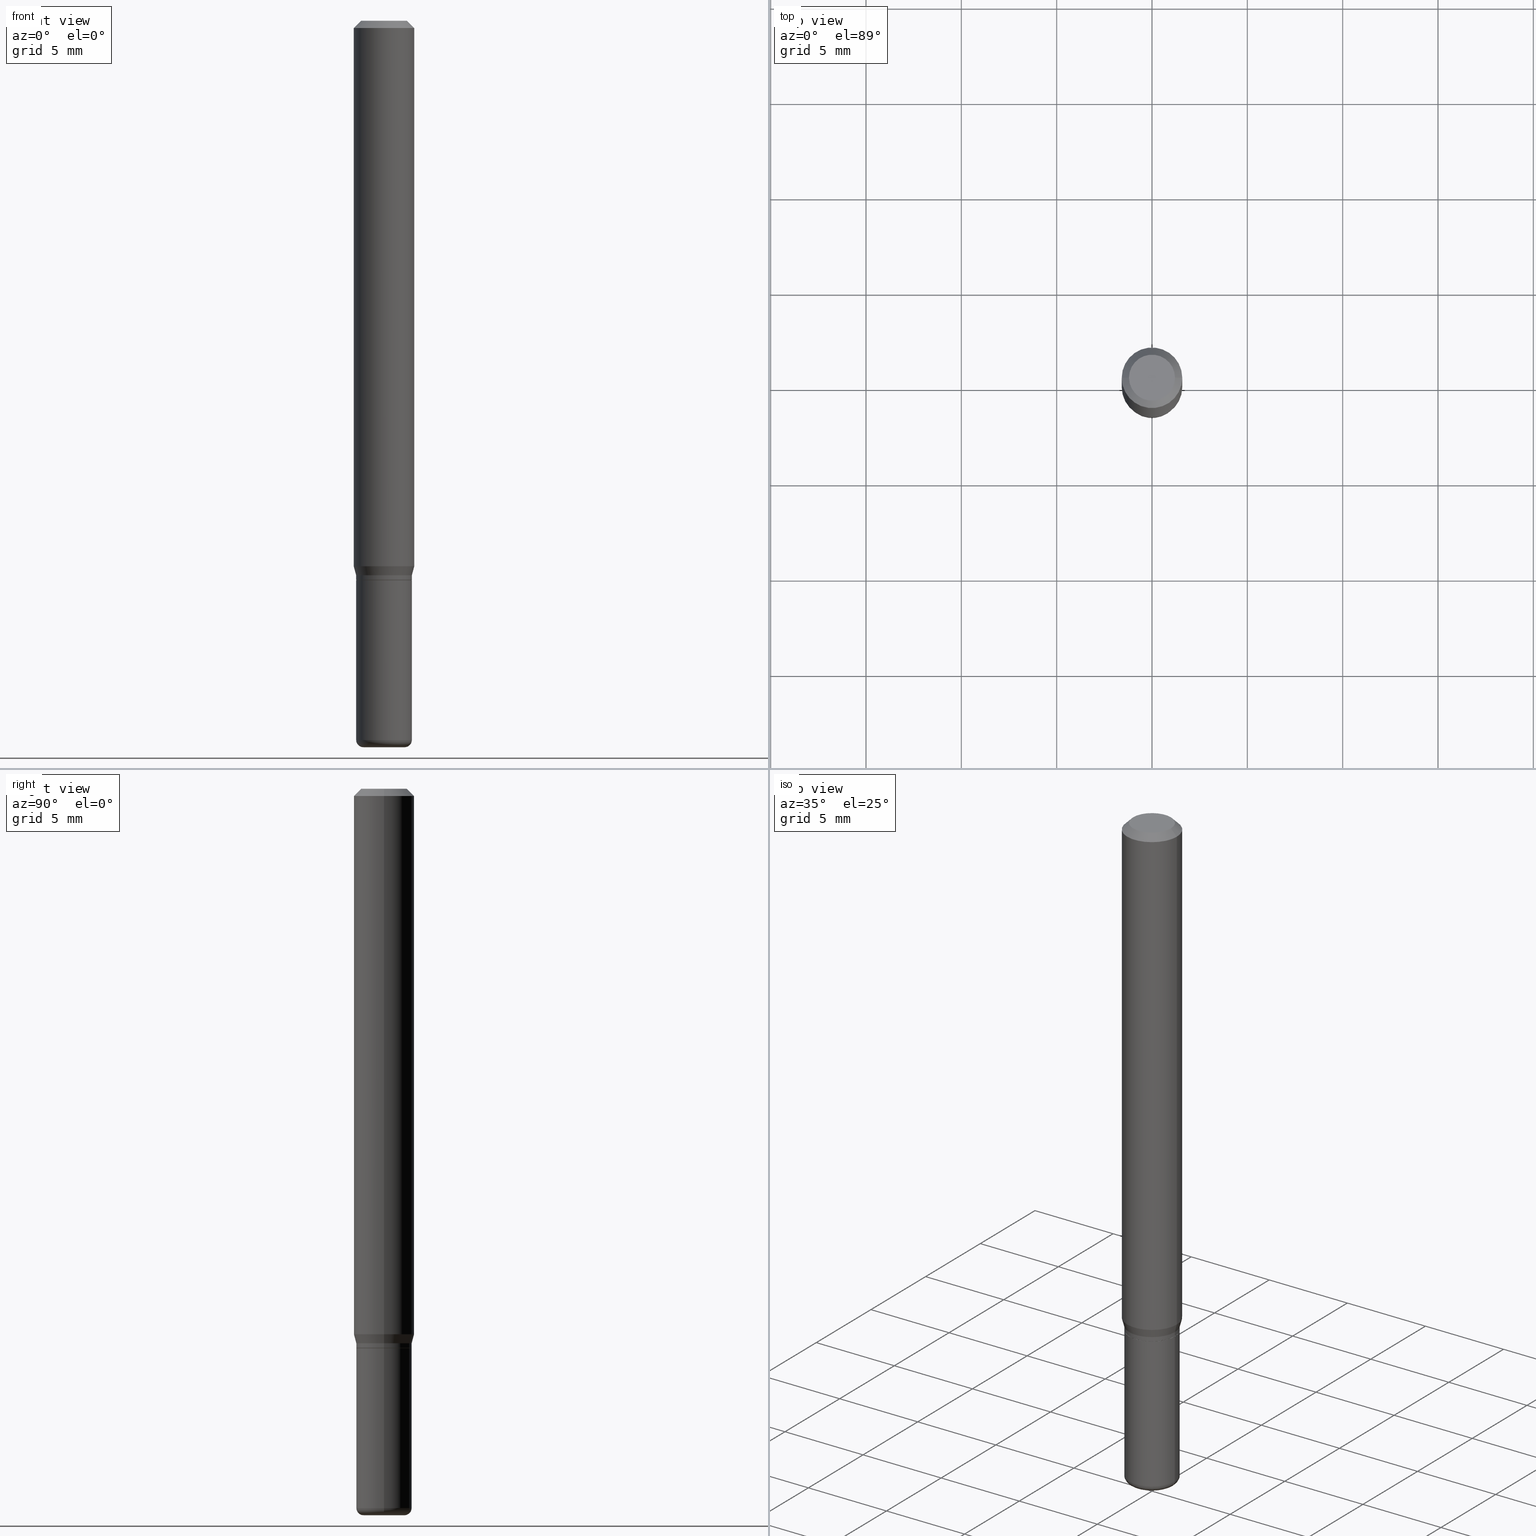
[diagram: canonical four-view strip — front | top / right | iso, engineering-drawing reading convention]
A machine part, canonical four-view strip (front | top / right | iso — engineering-drawing reading convention). The complete STEP part file that produces these views, byte-faithful:
ISO-10303-21;
HEADER;
FILE_DESCRIPTION (( 'STEP AP203' ),
    '1' );
FILE_NAME ('09111.STEP',
    '2024-02-29T22:14:59',
    ( '' ),
    ( '' ),
    'SwSTEP 2.0',
    'SolidWorks 2023',
    '' );
FILE_SCHEMA (( 'CONFIG_CONTROL_DESIGN' ));
ENDSEC;

DATA;
#1 = ORIENTED_EDGE ( 'NONE', *, *, #307, .T. ) ;
#2 = PERSON_AND_ORGANIZATION ( #153, #236 ) ;
#3 = APPROVAL ( #138, 'UNSPECIFIED' ) ;
#4 = CIRCLE ( 'NONE', #470, 0.05749999999999999556 ) ;
#5 = APPROVAL_PERSON_ORGANIZATION ( #441, #3, #374 ) ;
#6 = CARTESIAN_POINT ( 'NONE',  ( 0.05749999999999999556, -4.015203539669603161E-16, 2.803801646082662590E-30 ) ) ;
#7 = VERTEX_POINT ( 'NONE', #202 ) ;
#8 = DIRECTION ( 'NONE',  ( 1.000000000000000000, -6.982962677686266711E-15, 4.876176775795935232E-29 ) ) ;
#9 = ORIENTED_EDGE ( 'NONE', *, *, #194, .T. ) ;
#10 = DIRECTION ( 'NONE',  ( -2.445468806185136877E-29, 3.491481338843145188E-15, 1.000000000000000000 ) ) ;
#11 = EDGE_LOOP ( 'NONE', ( #491, #33, #214, #14 ) ) ;
#12 = AXIS2_PLACEMENT_3D ( 'NONE', #149, #195, #426 ) ;
#13 = EDGE_CURVE ( 'NONE', #47, #305, #271, .T. ) ;
#14 = ORIENTED_EDGE ( 'NONE', *, *, #376, .F. ) ;
#15 = PRODUCT ( '09111', '09111', '', ( #50 ) ) ;
#16 = ORIENTED_EDGE ( 'NONE', *, *, #379, .T. ) ;
#17 = DIRECTION ( 'NONE',  ( 1.000000000000000000, -6.982962677686274599E-15, 0.000000000000000000 ) ) ;
#18 = LINE ( 'NONE', #207, #64 ) ;
#19 = AXIS2_PLACEMENT_3D ( 'NONE', #475, #32, #508 ) ;
#20 = AXIS2_PLACEMENT_3D ( 'NONE', #57, #385, #288 ) ;
#21 = EDGE_CURVE ( 'NONE', #390, #132, #272, .T. ) ;
#22 = DIRECTION ( 'NONE',  ( 1.000000000000000000, -6.982962677686266711E-15, 0.000000000000000000 ) ) ;
#23 = CARTESIAN_POINT ( 'NONE',  ( 3.631521177184928138E-29, -5.184849788182071492E-15, -1.485000000000000098 ) ) ;
#24 = DIRECTION ( 'NONE',  ( -2.445468806185136597E-29, 3.491481338843145583E-15, 1.000000000000000000 ) ) ;
#25 = DIRECTION ( 'NONE',  ( 2.438088387897960049E-29, -3.491481338843145188E-15, -1.000000000000000000 ) ) ;
#26 = CARTESIAN_POINT ( 'NONE',  ( 2.800061783081981762E-29, -3.997746132975402522E-15, -1.145000000000000240 ) ) ;
#27 = APPROVAL ( #244, 'UNSPECIFIED' ) ;
#28 = VERTEX_POINT ( 'NONE', #172 ) ;
#29 = ADVANCED_FACE ( 'NONE', ( #330 ), #253, .T. ) ;
#30 = CARTESIAN_POINT ( 'NONE',  ( 0.05749999999999999556, -4.432435559661372688E-15, -1.154500000000000304 ) ) ;
#31 = CIRCLE ( 'NONE', #258, 0.05699999999999998818 ) ;
#32 = DIRECTION ( 'NONE',  ( -2.438088387897960049E-29, 3.491481338843145188E-15, 1.000000000000000000 ) ) ;
#33 = ORIENTED_EDGE ( 'NONE', *, *, #40, .T. ) ;
#34 = DIRECTION ( 'NONE',  ( -2.445468806185136597E-29, 3.491481338843145583E-15, 1.000000000000000000 ) ) ;
#35 = DIRECTION ( 'NONE',  ( -2.445468806185136877E-29, 3.491481338843145188E-15, 1.000000000000000000 ) ) ;
#36 = ORIENTED_EDGE ( 'NONE', *, *, #506, .F. ) ;
#37 = CARTESIAN_POINT ( 'NONE',  ( 3.668203209277632395E-31, -5.237222008264614861E-17, -0.01499999999999970281 ) ) ;
#38 = DATE_AND_TIME ( #284, #76 ) ;
#39 = LINE ( 'NONE', #436, #243 ) ;
#40 = EDGE_CURVE ( 'NONE', #106, #132, #435, .T. ) ;
#41 = LINE ( 'NONE', #518, #54 ) ;
#42 = FACE_OUTER_BOUND ( 'NONE', #345, .T. ) ;
#43 = APPLICATION_PROTOCOL_DEFINITION ( 'international standard', 'config_control_design', 1994, #356 ) ;
#44 = CARTESIAN_POINT ( 'NONE',  ( 2.823293736740741066E-29, -4.030915205694411879E-15, -1.154500000000000304 ) ) ;
#45 = AXIS2_PLACEMENT_3D ( 'NONE', #239, #34, #164 ) ;
#46 = AXIS2_PLACEMENT_3D ( 'NONE', #295, #188, #344 ) ;
#47 = VERTEX_POINT ( 'NONE', #401 ) ;
#48 = CYLINDRICAL_SURFACE ( 'NONE', #169, 0.05749999999999998168 ) ;
#49 = ORIENTED_EDGE ( 'NONE', *, *, #269, .F. ) ;
#50 = MECHANICAL_CONTEXT ( 'NONE', #317, 'mechanical' ) ;
#51 = ADVANCED_FACE ( 'NONE', ( #42 ), #48, .T. ) ;
#52 = CARTESIAN_POINT ( 'NONE',  ( 0.000000000000000000, 0.000000000000000000, 0.000000000000000000 ) ) ;
#53 = VERTEX_POINT ( 'NONE', #120 ) ;
#54 = VECTOR ( 'NONE', #336, 39.37007874015748143 ) ;
#55 = SECURITY_CLASSIFICATION ( '', '', #331 ) ;
#56 = DIRECTION ( 'NONE',  ( 1.000000000000000000, -6.982962677686266711E-15, 0.000000000000000000 ) ) ;
#57 = CARTESIAN_POINT ( 'NONE',  ( 2.754428713916943180E-29, -3.932594204224195830E-15, -1.126339745962155803 ) ) ;
#58 = ORIENTED_EDGE ( 'NONE', *, *, #154, .F. ) ;
#59 = LINE ( 'NONE', #266, #116 ) ;
#60 = EDGE_CURVE ( 'NONE', #292, #391, #347, .T. ) ;
#61 = CYLINDRICAL_SURFACE ( 'NONE', #222, 0.05749999999999999556 ) ;
#62 = ORIENTED_EDGE ( 'NONE', *, *, #506, .T. ) ;
#63 = ORIENTED_EDGE ( 'NONE', *, *, #269, .T. ) ;
#64 = VECTOR ( 'NONE', #197, 39.37007874015748854 ) ;
#65 = CARTESIAN_POINT ( 'NONE',  ( 0.05749999999999996780, -4.399266486942362543E-15, -1.145000000000000240 ) ) ;
#66 = EDGE_CURVE ( 'NONE', #390, #7, #220, .T. ) ;
#67 = CARTESIAN_POINT ( 'NONE',  ( 0.05699999999999998818, -4.430689818991950396E-15, -1.155000000000000027 ) ) ;
#68 = LINE ( 'NONE', #308, #415 ) ;
#69 = AXIS2_PLACEMENT_3D ( 'NONE', #299, #458, #102 ) ;
#70 = FACE_OUTER_BOUND ( 'NONE', #382, .T. ) ;
#71 = MANIFOLD_SOLID_BREP ( 'Body-Move/Copy2[1]', #108 ) ;
#72 = DIRECTION ( 'NONE',  ( 1.000000000000000000, -6.982962677686276177E-15, 0.000000000000000000 ) ) ;
#73 = CARTESIAN_POINT ( 'NONE',  ( 0.05699999999999998818, -4.430689818991950396E-15, -1.155000000000000027 ) ) ;
#74 = PERSON_AND_ORGANIZATION ( #153, #236 ) ;
#75 = AXIS2_PLACEMENT_3D ( 'NONE', #321, #237, #398 ) ;
#76 = LOCAL_TIME ( 17, 14, 59.00000000000000000, #448 ) ;
#77 = EDGE_LOOP ( 'NONE', ( #145, #97, #148, #303 ) ) ;
#78 = DIRECTION ( 'NONE',  ( -2.445468806185136597E-29, 3.491481338843145583E-15, 1.000000000000000000 ) ) ;
#79 =( LENGTH_UNIT ( ) NAMED_UNIT ( * ) SI_UNIT ( $, .METRE. ) );
#80 = APPROVAL_ROLE ( '' ) ;
#81 = CC_DESIGN_PERSON_AND_ORGANIZATION_ASSIGNMENT ( #252, #173, ( #312 ) ) ;
#82 = ORIENTED_EDGE ( 'NONE', *, *, #240, .T. ) ;
#83 = DIRECTION ( 'NONE',  ( 7.105427357601001859E-15, 1.000000000000000000, -3.491481338843145583E-15 ) ) ;
#84 = CALENDAR_DATE ( 2024, 29, 2 ) ;
#85 = EDGE_LOOP ( 'NONE', ( #514, #368, #16, #509 ) ) ;
#86 = APPLICATION_PROTOCOL_DEFINITION ( 'international standard', 'config_control_design', 1994, #317 ) ;
#87 = AXIS2_PLACEMENT_3D ( 'NONE', #315, #351, #306 ) ;
#88 = LOCAL_TIME ( 17, 14, 59.00000000000000000, #255 ) ;
#89 = ORIENTED_EDGE ( 'NONE', *, *, #348, .F. ) ;
#90 = ADVANCED_FACE ( 'NONE', ( #297 ), #143, .T. ) ;
#91 = PERSON_AND_ORGANIZATION_ROLE ( 'design_owner' ) ;
#92 = DIRECTION ( 'NONE',  ( 1.000000000000000000, -6.982962677686266711E-15, 4.876176775795935793E-29 ) ) ;
#93 = ORIENTED_EDGE ( 'NONE', *, *, #100, .T. ) ;
#94 = DIRECTION ( 'NONE',  ( -2.445468806185136597E-29, 3.491481338843145583E-15, 1.000000000000000000 ) ) ;
#95 = AXIS2_PLACEMENT_3D ( 'NONE', #316, #275, #22 ) ;
#96 = AXIS2_PLACEMENT_3D ( 'NONE', #183, #147, #263 ) ;
#97 = ORIENTED_EDGE ( 'NONE', *, *, #110, .T. ) ;
#98 = FACE_OUTER_BOUND ( 'NONE', #85, .T. ) ;
#99 = DIRECTION ( 'NONE',  ( 0.7071067811866199593, -2.468850131083015945E-15, 0.7071067811864750752 ) ) ;
#100 = EDGE_CURVE ( 'NONE', #413, #104, #59, .T. ) ;
#101 = DIRECTION ( 'NONE',  ( 1.000000000000000000, -6.982962677686266711E-15, 0.000000000000000000 ) ) ;
#102 = DIRECTION ( 'NONE',  ( 1.000000000000000000, -6.982962677686266711E-15, 4.876176775795935793E-29 ) ) ;
#103 = EDGE_LOOP ( 'NONE', ( #383, #460, #89, #301 ) ) ;
#104 = VERTEX_POINT ( 'NONE', #387 ) ;
#105 = CARTESIAN_POINT ( 'NONE',  ( -0.05749999999999998168, -4.200193294210894862E-15, -1.485000000000000098 ) ) ;
#106 = VERTEX_POINT ( 'NONE', #463 ) ;
#107 = FACE_OUTER_BOUND ( 'NONE', #77, .T. ) ;
#108 = CLOSED_SHELL ( 'NONE', ( #294, #427, #187, #467, #354, #251 ) ) ;
#109 = AXIS2_PLACEMENT_3D ( 'NONE', #279, #78, #450 ) ;
#110 = EDGE_CURVE ( 'NONE', #104, #144, #434, .T. ) ;
#111 = VERTEX_POINT ( 'NONE', #393 ) ;
#112 = FACE_OUTER_BOUND ( 'NONE', #456, .T. ) ;
#113 = DIRECTION ( 'NONE',  ( 1.000000000000000000, -6.982962677686262766E-15, 0.000000000000000000 ) ) ;
#114 = FACE_OUTER_BOUND ( 'NONE', #103, .T. ) ;
#115 = DIRECTION ( 'NONE',  ( 1.000000000000000000, -6.982962677686273810E-15, 0.000000000000000000 ) ) ;
#116 = VECTOR ( 'NONE', #232, 39.37007874015748143 ) ;
#117 = CARTESIAN_POINT ( 'NONE',  ( 3.316907271900976589E-16, 0.04750000000000000749, -2.925296391183627249E-17 ) ) ;
#118 = CC_DESIGN_PERSON_AND_ORGANIZATION_ASSIGNMENT ( #125, #380, ( #455 ) ) ;
#119 = DIRECTION ( 'NONE',  ( -2.445468806185136597E-29, 3.491481338843145583E-15, 1.000000000000000000 ) ) ;
#120 = CARTESIAN_POINT ( 'NONE',  ( -0.06250000000000000000, -1.548394002303358444E-15, -0.01499999999999970281 ) ) ;
#121 = CARTESIAN_POINT ( 'NONE',  ( -0.06250000000000000000, -3.488504994374133608E-15, -1.126339745962155803 ) ) ;
#122 = COORDINATED_UNIVERSAL_TIME_OFFSET ( 5, 0, .BEHIND. ) ;
#123 = CARTESIAN_POINT ( 'NONE',  ( -0.04750000000000000749, 3.578768372314221353E-16, 2.731847993664239060E-16 ) ) ;
#124 = ORIENTED_EDGE ( 'NONE', *, *, #66, .T. ) ;
#125 = PERSON_AND_ORGANIZATION ( #153, #236 ) ;
#126 = AXIS2_PLACEMENT_3D ( 'NONE', #371, #83, #478 ) ;
#127 = APPROVAL_PERSON_ORGANIZATION ( #74, #27, #80 ) ;
#128 = ADVANCED_FACE ( 'NONE', ( #107 ), #139, .T. ) ;
#129 = DIRECTION ( 'NONE',  ( 1.000000000000000000, -6.982962677686266711E-15, 0.000000000000000000 ) ) ;
#130 = DATE_AND_TIME ( #84, #88 ) ;
#131 = DIRECTION ( 'NONE',  ( 1.000000000000000000, -6.982962677686266711E-15, 4.876176775795935232E-29 ) ) ;
#132 = VERTEX_POINT ( 'NONE', #105 ) ;
#133 = DATE_TIME_ROLE ( 'creation_date' ) ;
#134 = CARTESIAN_POINT ( 'NONE',  ( -0.05749999999999996780, -3.589184059913344947E-15, -1.145000000000000240 ) ) ;
#135 = EDGE_CURVE ( 'NONE', #391, #343, #68, .T. ) ;
#136 = ORIENTED_EDGE ( 'NONE', *, *, #341, .F. ) ;
#137 = CARTESIAN_POINT ( 'NONE',  ( 0.05749999999999998168, -5.586370142149031512E-15, -1.485000000000000098 ) ) ;
#138 = APPROVAL_STATUS ( 'not_yet_approved' ) ;
#139 = CONICAL_SURFACE ( 'NONE', #12, 0.05749999999999996780, 0.2617993877991499074 ) ;
#140 = VECTOR ( 'NONE', #35, 39.37007874015748143 ) ;
#141 = DIRECTION ( 'NONE',  ( 1.000000000000000000, -6.982962677686266711E-15, 4.852736867747365086E-29 ) ) ;
#142 = ORIENTED_EDGE ( 'NONE', *, *, #366, .T. ) ;
#143 = CYLINDRICAL_SURFACE ( 'NONE', #69, 0.06250000000000000000 ) ;
#144 = VERTEX_POINT ( 'NONE', #65 ) ;
#145 = ORIENTED_EDGE ( 'NONE', *, *, #240, .F. ) ;
#146 = AXIS2_PLACEMENT_3D ( 'NONE', #408, #293, #131 ) ;
#147 = DIRECTION ( 'NONE',  ( -2.445468806185136597E-29, 3.491481338843145583E-15, 1.000000000000000000 ) ) ;
#148 = ORIENTED_EDGE ( 'NONE', *, *, #341, .T. ) ;
#149 = CARTESIAN_POINT ( 'NONE',  ( 2.800061783081981762E-29, -3.997746132975402522E-15, -1.145000000000000240 ) ) ;
#150 = EDGE_LOOP ( 'NONE', ( #242, #414 ) ) ;
#151 = ORIENTED_EDGE ( 'NONE', *, *, #135, .T. ) ;
#152 = EDGE_CURVE ( 'NONE', #413, #309, #453, .T. ) ;
#153 = PERSON ( 'UNSPECIFIED', 'UNSPECIFIED', 'UNSPECIFIED', ('UNSPECIFIED'), ('UNSPECIFIED'), ('UNSPECIFIED') ) ;
#154 = EDGE_CURVE ( 'NONE', #305, #47, #31, .T. ) ;
#155 = VECTOR ( 'NONE', #10, 39.37007874015748143 ) ;
#156 = AXIS2_PLACEMENT_3D ( 'NONE', #37, #326, #361 ) ;
#157 = DIRECTION ( 'NONE',  ( -2.445468806185136597E-29, 3.491481338843145583E-15, 1.000000000000000000 ) ) ;
#158 = CIRCLE ( 'NONE', #445, 0.06250000000000000000 ) ;
#159 = LOCAL_TIME ( 17, 14, 59.00000000000000000, #405 ) ;
#160 = CARTESIAN_POINT ( 'NONE',  ( 2.824516471143833307E-29, -4.032660946363833383E-15, -1.155000000000000027 ) ) ;
#161 = LINE ( 'NONE', #322, #471 ) ;
#162 = DIRECTION ( 'NONE',  ( -2.445468806185136597E-29, 3.491481338843145583E-15, 1.000000000000000000 ) ) ;
#163 = CARTESIAN_POINT ( 'NONE',  ( 4.015203539669885672E-16, 0.05749999999999597100, -1.155000000000000249 ) ) ;
#164 = DIRECTION ( 'NONE',  ( 1.000000000000000000, -6.982962677686258822E-15, 0.000000000000000000 ) ) ;
#165 = DATE_AND_TIME ( #512, #192 ) ;
#166 = FACE_OUTER_BOUND ( 'NONE', #11, .T. ) ;
#167 = ORIENTED_EDGE ( 'NONE', *, *, #461, .F. ) ;
#168 = PERSON_AND_ORGANIZATION_ROLE ( 'design_supplier' ) ;
#169 = AXIS2_PLACEMENT_3D ( 'NONE', #215, #210, #474 ) ;
#170 =( GEOMETRIC_REPRESENTATION_CONTEXT ( 3 ) GLOBAL_UNCERTAINTY_ASSIGNED_CONTEXT ( ( #494 ) ) GLOBAL_UNIT_ASSIGNED_CONTEXT ( ( #482, #245, #216 ) ) REPRESENTATION_CONTEXT ( 'NONE', 'WORKASPACE' ) );
#171 = ORIENTED_EDGE ( 'NONE', *, *, #100, .F. ) ;
#172 = CARTESIAN_POINT ( 'NONE',  ( -0.05750000000000000250, -4.200193294210894862E-15, -1.155000000000000027 ) ) ;
#173 = PERSON_AND_ORGANIZATION_ROLE ( 'creator' ) ;
#174 = DATE_AND_TIME ( #248, #159 ) ;
#175 = PLANE ( 'NONE',  #320 ) ;
#176 = CC_DESIGN_DATE_AND_TIME_ASSIGNMENT ( #130, #133, ( #312 ) ) ;
#177 = ORIENTED_EDGE ( 'NONE', *, *, #462, .F. ) ;
#178 = LENGTH_MEASURE_WITH_UNIT ( LENGTH_MEASURE( 0.02539999999999999897 ), #79 );
#179 = ADVANCED_BREP_SHAPE_REPRESENTATION ( '09111', ( #71, #241, #204 ), #170 ) ;
#180 = ORIENTED_EDGE ( 'NONE', *, *, #379, .F. ) ;
#181 = DATE_TIME_ROLE ( 'classification_date' ) ;
#182 = AXIS2_PLACEMENT_3D ( 'NONE', #392, #157, #17 ) ;
#183 = CARTESIAN_POINT ( 'NONE',  ( 0.000000000000000000, 0.000000000000000000, 0.000000000000000000 ) ) ;
#184 = ADVANCED_FACE ( 'NONE', ( #199 ), #274, .F. ) ;
#185 = DIRECTION ( 'NONE',  ( -0.7071067811866199593, 7.493145998870616062E-15, 0.7071067811864750752 ) ) ;
#186 = PRODUCT_DEFINITION_SHAPE ( 'NONE', 'NONE',  #312 ) ;
#187 = ADVANCED_FACE ( 'NONE', ( #359 ), #472, .F. ) ;
#188 = DIRECTION ( 'NONE',  ( -2.445468806185136597E-29, 3.491481338843145583E-15, 1.000000000000000000 ) ) ;
#189 = FACE_OUTER_BOUND ( 'NONE', #362, .T. ) ;
#190 = ORIENTED_EDGE ( 'NONE', *, *, #60, .F. ) ;
#191 = CONICAL_SURFACE ( 'NONE', #402, 0.06250000000000000000, 0.7853981633974488341 ) ;
#192 = LOCAL_TIME ( 17, 14, 59.00000000000000000, #122 ) ;
#193 = EDGE_CURVE ( 'NONE', #132, #28, #39, .T. ) ;
#194 = EDGE_CURVE ( 'NONE', #144, #104, #498, .T. ) ;
#195 = DIRECTION ( 'NONE',  ( -2.445468806185136597E-29, 3.491481338843145583E-15, 1.000000000000000000 ) ) ;
#196 = CIRCLE ( 'NONE', #394, 0.06250000000000000000 ) ;
#197 = DIRECTION ( 'NONE',  ( 0.2588190451025211836, 1.565188264969622559E-15, 0.9659258262890679791 ) ) ;
#198 = ADVANCED_FACE ( 'NONE', ( #112 ), #191, .T. ) ;
#199 = FACE_OUTER_BOUND ( 'NONE', #422, .T. ) ;
#200 = FACE_OUTER_BOUND ( 'NONE', #333, .T. ) ;
#201 = CARTESIAN_POINT ( 'NONE',  ( 3.668203209277704895E-29, -5.237222008264718177E-15, -1.500000000000000222 ) ) ;
#202 = CARTESIAN_POINT ( 'NONE',  ( 0.05750000000000000250, -4.434181300330794192E-15, -1.155000000000000027 ) ) ;
#203 = AXIS2_PLACEMENT_3D ( 'NONE', #160, #213, #335 ) ;
#204 = AXIS2_PLACEMENT_3D ( 'NONE', #439, #208, #406 ) ;
#205 = ADVANCED_FACE ( 'NONE', ( #200 ), #464, .T. ) ;
#206 = CARTESIAN_POINT ( 'NONE',  ( 2.754428713916943180E-29, -3.932594204224195830E-15, -1.126339745962155803 ) ) ;
#207 = CARTESIAN_POINT ( 'NONE',  ( 0.05749999999999996780, -4.399266486942362543E-15, -1.145000000000000240 ) ) ;
#208 = DIRECTION ( 'NONE',  ( 0.000000000000000000, 0.000000000000000000, 1.000000000000000000 ) ) ;
#209 = DIRECTION ( 'NONE',  ( -2.445468806185136597E-29, 3.491481338843145583E-15, 1.000000000000000000 ) ) ;
#210 = DIRECTION ( 'NONE',  ( -2.445468806185136597E-29, 3.491481338843145583E-15, 1.000000000000000000 ) ) ;
#211 = CALENDAR_DATE ( 2024, 29, 2 ) ;
#212 = AXIS2_PLACEMENT_3D ( 'NONE', #277, #492, #141 ) ;
#213 = DIRECTION ( 'NONE',  ( -2.445468806185136597E-29, 3.491481338843145583E-15, 1.000000000000000000 ) ) ;
#214 = ORIENTED_EDGE ( 'NONE', *, *, #21, .F. ) ;
#215 = CARTESIAN_POINT ( 'NONE',  ( 0.000000000000000000, 0.000000000000000000, 0.000000000000000000 ) ) ;
#216 =( NAMED_UNIT ( * ) SI_UNIT ( $, .STERADIAN. ) SOLID_ANGLE_UNIT ( ) );
#217 = CC_DESIGN_PERSON_AND_ORGANIZATION_ASSIGNMENT ( #372, #91, ( #15 ) ) ;
#218 = ORIENTED_EDGE ( 'NONE', *, *, #278, .F. ) ;
#219 = APPROVAL_ROLE ( '' ) ;
#220 = LINE ( 'NONE', #6, #155 ) ;
#221 = VECTOR ( 'NONE', #99, 39.37007874015748143 ) ;
#222 = AXIS2_PLACEMENT_3D ( 'NONE', #52, #487, #8 ) ;
#223 = EDGE_LOOP ( 'NONE', ( #9, #82, #230, #136 ) ) ;
#224 = FACE_OUTER_BOUND ( 'NONE', #223, .T. ) ;
#225 = ORIENTED_EDGE ( 'NONE', *, *, #517, .T. ) ;
#226 = ORIENTED_EDGE ( 'NONE', *, *, #135, .F. ) ;
#227 = DIRECTION ( 'NONE',  ( -2.445468806185136877E-29, 3.491481338843145188E-15, 1.000000000000000000 ) ) ;
#228 = ORIENTED_EDGE ( 'NONE', *, *, #476, .T. ) ;
#229 = CC_DESIGN_DATE_AND_TIME_ASSIGNMENT ( #286, #181, ( #55 ) ) ;
#230 = ORIENTED_EDGE ( 'NONE', *, *, #517, .F. ) ;
#231 = CIRCLE ( 'NONE', #20, 0.06250000000000000000 ) ;
#232 = DIRECTION ( 'NONE',  ( -2.445468806185136877E-29, 3.491481338843145188E-15, 1.000000000000000000 ) ) ;
#233 = DIRECTION ( 'NONE',  ( 0.7071067811865479058, -7.319954787623257623E-15, -0.7071067811865471286 ) ) ;
#234 = VECTOR ( 'NONE', #373, 39.37007874015748854 ) ;
#235 = CARTESIAN_POINT ( 'NONE',  ( -0.05749999999999999556, -3.622353132632355093E-15, -1.154500000000000304 ) ) ;
#236 = ORGANIZATION ( 'UNSPECIFIED', 'UNSPECIFIED', '' ) ;
#237 = DIRECTION ( 'NONE',  ( -2.445468806185136597E-29, 3.491481338843145583E-15, 1.000000000000000000 ) ) ;
#238 = DIRECTION ( 'NONE',  ( 2.445468806185136597E-29, -3.491481338843145583E-15, -1.000000000000000000 ) ) ;
#239 = CARTESIAN_POINT ( 'NONE',  ( 3.631521177184928138E-29, -5.184849788182071492E-15, -1.485000000000000098 ) ) ;
#240 = EDGE_CURVE ( 'NONE', #104, #365, #516, .T. ) ;
#241 = MANIFOLD_SOLID_BREP ( 'Body-Move/Copy2[2]', #338 ) ;
#242 = ORIENTED_EDGE ( 'NONE', *, *, #417, .F. ) ;
#243 = VECTOR ( 'NONE', #246, 39.37007874015748143 ) ;
#244 = APPROVAL_STATUS ( 'not_yet_approved' ) ;
#245 =( NAMED_UNIT ( * ) PLANE_ANGLE_UNIT ( ) SI_UNIT ( $, .RADIAN. ) );
#246 = DIRECTION ( 'NONE',  ( -2.445468806185136877E-29, 3.491481338843145188E-15, 1.000000000000000000 ) ) ;
#247 = COORDINATED_UNIVERSAL_TIME_OFFSET ( 5, 0, .BEHIND. ) ;
#248 = CALENDAR_DATE ( 2024, 29, 2 ) ;
#249 = CARTESIAN_POINT ( 'NONE',  ( 3.582686580359766038E-29, -5.359686688179453325E-15, -1.500000000000000222 ) ) ;
#250 = ORIENTED_EDGE ( 'NONE', *, *, #110, .F. ) ;
#251 = ADVANCED_FACE ( 'NONE', ( #442 ), #175, .F. ) ;
#252 = PERSON_AND_ORGANIZATION ( #153, #236 ) ;
#253 = CONICAL_SURFACE ( 'NONE', #156, 0.06250000000000000000, 0.7853981633974488341 ) ;
#254 = CONICAL_SURFACE ( 'NONE', #425, 0.05749999999999996780, 0.2617993877991499074 ) ;
#255 = COORDINATED_UNIVERSAL_TIME_OFFSET ( 5, 0, .BEHIND. ) ;
#256 = CARTESIAN_POINT ( 'NONE',  ( 0.05749999999999998168, -4.015203539669602668E-16, 2.803801646082662240E-30 ) ) ;
#257 = LINE ( 'NONE', #304, #329 ) ;
#258 = AXIS2_PLACEMENT_3D ( 'NONE', #396, #457, #101 ) ;
#259 = CARTESIAN_POINT ( 'NONE',  ( 0.000000000000000000, 0.000000000000000000, 0.000000000000000000 ) ) ;
#260 = EDGE_LOOP ( 'NONE', ( #386, #228, #124, #167 ) ) ;
#261 = ORIENTED_EDGE ( 'NONE', *, *, #452, .T. ) ;
#262 = EDGE_LOOP ( 'NONE', ( #440, #352 ) ) ;
#263 = DIRECTION ( 'NONE',  ( 1.000000000000000000, -6.982962677686267499E-15, 4.876176775795935793E-29 ) ) ;
#264 = ORIENTED_EDGE ( 'NONE', *, *, #476, .F. ) ;
#265 = TOROIDAL_SURFACE ( 'NONE', #75, 0.04249999999999999611, 0.01499999999999998557 ) ;
#266 = CARTESIAN_POINT ( 'NONE',  ( -0.05749999999999998168, 4.085620730620574767E-16, -2.828387676896570012E-30 ) ) ;
#267 = AXIS2_PLACEMENT_3D ( 'NONE', #416, #418, #56 ) ;
#268 = DIRECTION ( 'NONE',  ( -0.7071067811865479058, 2.468850131082261005E-15, -0.7071067811865471286 ) ) ;
#269 = EDGE_CURVE ( 'NONE', #309, #413, #4, .T. ) ;
#270 = DIRECTION ( 'NONE',  ( 1.000000000000000000, -6.982962677686274599E-15, 0.000000000000000000 ) ) ;
#271 = CIRCLE ( 'NONE', #429, 0.05699999999999998818 ) ;
#272 = CIRCLE ( 'NONE', #45, 0.05749999999999998168 ) ;
#273 = AXIS2_PLACEMENT_3D ( 'NONE', #511, #94, #384 ) ;
#274 = PLANE ( 'NONE',  #19 ) ;
#275 = DIRECTION ( 'NONE',  ( -2.445468806185136597E-29, 3.491481338843145583E-15, 1.000000000000000000 ) ) ;
#276 = EDGE_CURVE ( 'NONE', #106, #111, #369, .T. ) ;
#277 = CARTESIAN_POINT ( 'NONE',  ( -6.680649051745406845E-45, 9.538196290434862081E-31, 2.731847993664263218E-16 ) ) ;
#278 = EDGE_CURVE ( 'NONE', #305, #309, #497, .T. ) ;
#279 = CARTESIAN_POINT ( 'NONE',  ( -6.680649051745406845E-45, 9.538196290434862081E-31, 2.731847993664263218E-16 ) ) ;
#280 = PERSON_AND_ORGANIZATION ( #153, #236 ) ;
#281 = CARTESIAN_POINT ( 'NONE',  ( -0.06250000000000000000, 4.440892098500626162E-16, -3.074334431409316114E-30 ) ) ;
#282 = EDGE_LOOP ( 'NONE', ( #171, #325, #488, #250 ) ) ;
#283 = CIRCLE ( 'NONE', #381, 0.01499999999999998557 ) ;
#284 = CALENDAR_DATE ( 2024, 29, 2 ) ;
#285 = ORIENTED_EDGE ( 'NONE', *, *, #60, .T. ) ;
#286 = DATE_AND_TIME ( #211, #403 ) ;
#287 = ADVANCED_FACE ( 'NONE', ( #189 ), #314, .F. ) ;
#288 = DIRECTION ( 'NONE',  ( 1.000000000000000000, -6.982962677686262766E-15, 0.000000000000000000 ) ) ;
#289 = DIRECTION ( 'NONE',  ( -2.445468806185136597E-29, 3.491481338843145583E-15, 1.000000000000000000 ) ) ;
#290 = AXIS2_PLACEMENT_3D ( 'NONE', #163, #323, #465 ) ;
#291 = CC_DESIGN_APPROVAL ( #3, ( #312 ) ) ;
#292 = VERTEX_POINT ( 'NONE', #123 ) ;
#293 = DIRECTION ( 'NONE',  ( -2.445468806185136597E-29, 3.491481338843145583E-15, 1.000000000000000000 ) ) ;
#294 = ADVANCED_FACE ( 'NONE', ( #166 ), #504, .T. ) ;
#295 = CARTESIAN_POINT ( 'NONE',  ( 3.631521177184928138E-29, -5.184849788182071492E-15, -1.485000000000000098 ) ) ;
#296 = EDGE_LOOP ( 'NONE', ( #431, #151, #62, #419 ) ) ;
#297 = FACE_OUTER_BOUND ( 'NONE', #377, .T. ) ;
#298 = FACE_OUTER_BOUND ( 'NONE', #282, .T. ) ;
#299 = CARTESIAN_POINT ( 'NONE',  ( 0.000000000000000000, 0.000000000000000000, 0.000000000000000000 ) ) ;
#300 = CARTESIAN_POINT ( 'NONE',  ( 2.800061783081981762E-29, -3.997746132975402522E-15, -1.145000000000000240 ) ) ;
#301 = ORIENTED_EDGE ( 'NONE', *, *, #66, .F. ) ;
#302 = AXIS2_PLACEMENT_3D ( 'NONE', #353, #495, #357 ) ;
#303 = ORIENTED_EDGE ( 'NONE', *, *, #404, .F. ) ;
#304 = CARTESIAN_POINT ( 'NONE',  ( -0.05699999999999998818, -3.627651586980576706E-15, -1.155000000000000027 ) ) ;
#305 = VERTEX_POINT ( 'NONE', #73 ) ;
#306 = DIRECTION ( 'NONE',  ( 1.000000000000000000, -6.982962677686276177E-15, 0.000000000000000000 ) ) ;
#307 = EDGE_CURVE ( 'NONE', #53, #343, #158, .T. ) ;
#308 = CARTESIAN_POINT ( 'NONE',  ( 0.06250000000000000000, -4.811533449433669144E-16, -0.01499999999999970281 ) ) ;
#309 = VERTEX_POINT ( 'NONE', #30 ) ;
#310 = AXIS2_PLACEMENT_3D ( 'NONE', #23, #313, #501 ) ;
#311 = DESIGN_CONTEXT ( 'detailed design', #356, 'design' ) ;
#312 = PRODUCT_DEFINITION ( 'UNKNOWN', '', #455, #311 ) ;
#313 = DIRECTION ( 'NONE',  ( -2.445468806185136597E-29, 3.491481338843145583E-15, 1.000000000000000000 ) ) ;
#314 = PLANE ( 'NONE',  #389 ) ;
#315 = CARTESIAN_POINT ( 'NONE',  ( 3.668203209277704895E-29, -5.237222008264718177E-15, -1.500000000000000222 ) ) ;
#316 = CARTESIAN_POINT ( 'NONE',  ( 2.824516471143833307E-29, -4.032660946363833383E-15, -1.155000000000000027 ) ) ;
#317 = APPLICATION_CONTEXT ( 'configuration controlled 3d designs of mechanical parts and assemblies' ) ;
#318 = CARTESIAN_POINT ( 'NONE',  ( 2.824516471143833307E-29, -4.032660946363833383E-15, -1.155000000000000027 ) ) ;
#319 = CC_DESIGN_PERSON_AND_ORGANIZATION_ASSIGNMENT ( #2, #432, ( #55 ) ) ;
#320 = AXIS2_PLACEMENT_3D ( 'NONE', #249, #407, #479 ) ;
#321 = CARTESIAN_POINT ( 'NONE',  ( 3.631521177184928138E-29, -5.184849788182071492E-15, -1.485000000000000098 ) ) ;
#322 = CARTESIAN_POINT ( 'NONE',  ( -0.06250000000000000000, 3.840629472727455270E-16, -0.01499999999999970281 ) ) ;
#323 = DIRECTION ( 'NONE',  ( 2.438088387897960049E-29, -3.491481338843145188E-15, -1.000000000000000000 ) ) ;
#324 = LINE ( 'NONE', #281, #140 ) ;
#325 = ORIENTED_EDGE ( 'NONE', *, *, #152, .T. ) ;
#326 = DIRECTION ( 'NONE',  ( 2.445468806185136597E-29, -3.491481338843145583E-15, -1.000000000000000000 ) ) ;
#327 = ORIENTED_EDGE ( 'NONE', *, *, #278, .T. ) ;
#328 = DIRECTION ( 'NONE',  ( -6.982962677686266711E-15, -1.000000000000000000, 3.491481338843145583E-15 ) ) ;
#329 = VECTOR ( 'NONE', #185, 39.37007874015748143 ) ;
#330 = FACE_OUTER_BOUND ( 'NONE', #296, .T. ) ;
#331 = SECURITY_CLASSIFICATION_LEVEL ( 'unclassified' ) ;
#332 = DIRECTION ( 'NONE',  ( 1.000000000000000000, -6.982962677686269077E-15, 0.000000000000000000 ) ) ;
#333 = EDGE_LOOP ( 'NONE', ( #493, #444, #49, #218 ) ) ;
#334 = ORIENTED_EDGE ( 'NONE', *, *, #469, .F. ) ;
#335 = DIRECTION ( 'NONE',  ( 1.000000000000000000, -6.982962677686266711E-15, 0.000000000000000000 ) ) ;
#336 = DIRECTION ( 'NONE',  ( -2.445468806185136877E-29, 3.491481338843145188E-15, 1.000000000000000000 ) ) ;
#337 = ORIENTED_EDGE ( 'NONE', *, *, #194, .F. ) ;
#338 = CLOSED_SHELL ( 'NONE', ( #51, #205, #29, #90, #480, #128, #503, #198, #287, #184, #399, #486 ) ) ;
#339 = CIRCLE ( 'NONE', #109, 0.04750000000000000749 ) ;
#340 = CIRCLE ( 'NONE', #46, 0.05749999999999998168 ) ;
#341 = EDGE_CURVE ( 'NONE', #144, #496, #18, .T. ) ;
#342 = DIRECTION ( 'NONE',  ( -2.445468806185136597E-29, 3.491481338843145583E-15, 1.000000000000000000 ) ) ;
#343 = VERTEX_POINT ( 'NONE', #363 ) ;
#344 = DIRECTION ( 'NONE',  ( 1.000000000000000000, -6.982962677686258822E-15, 0.000000000000000000 ) ) ;
#345 = EDGE_LOOP ( 'NONE', ( #63, #93, #337, #334 ) ) ;
#346 = DIRECTION ( 'NONE',  ( 1.000000000000000000, -6.982962677686269077E-15, 0.000000000000000000 ) ) ;
#347 = CIRCLE ( 'NONE', #212, 0.04750000000000000749 ) ;
#348 = EDGE_CURVE ( 'NONE', #7, #28, #424, .T. ) ;
#349 = CIRCLE ( 'NONE', #267, 0.06250000000000000000 ) ;
#350 = ORIENTED_EDGE ( 'NONE', *, *, #40, .F. ) ;
#351 = DIRECTION ( 'NONE',  ( -2.445468806185136597E-29, 3.491481338843145583E-15, 1.000000000000000000 ) ) ;
#352 = ORIENTED_EDGE ( 'NONE', *, *, #461, .T. ) ;
#353 = CARTESIAN_POINT ( 'NONE',  ( 2.800061783081981762E-29, -3.997746132975402522E-15, -1.145000000000000240 ) ) ;
#354 = ADVANCED_FACE ( 'NONE', ( #70 ), #265, .T. ) ;
#355 = CYLINDRICAL_SURFACE ( 'NONE', #146, 0.05749999999999999556 ) ;
#356 = APPLICATION_CONTEXT ( 'configuration controlled 3d designs of mechanical parts and assemblies' ) ;
#357 = DIRECTION ( 'NONE',  ( 1.000000000000000000, -6.982962677686269077E-15, 0.000000000000000000 ) ) ;
#358 = DIRECTION ( 'NONE',  ( -2.445468806185136597E-29, 3.491481338843145583E-15, 1.000000000000000000 ) ) ;
#359 = FACE_OUTER_BOUND ( 'NONE', #262, .T. ) ;
#360 = CARTESIAN_POINT ( 'NONE',  ( 2.824516471143833307E-29, -4.032660946363833383E-15, -1.155000000000000027 ) ) ;
#361 = DIRECTION ( 'NONE',  ( -1.000000000000000000, 6.982962677686266711E-15, 0.000000000000000000 ) ) ;
#362 = EDGE_LOOP ( 'NONE', ( #285, #142 ) ) ;
#363 = CARTESIAN_POINT ( 'NONE',  ( 0.06250000000000000000, -4.888073874380378612E-16, -0.01499999999999970281 ) ) ;
#364 = PERSON_AND_ORGANIZATION ( #153, #236 ) ;
#365 = VERTEX_POINT ( 'NONE', #121 ) ;
#366 = EDGE_CURVE ( 'NONE', #391, #292, #339, .T. ) ;
#367 = CARTESIAN_POINT ( 'NONE',  ( 0.04249999999999999611, -5.481625701983738143E-15, -1.485000000000000098 ) ) ;
#368 = ORIENTED_EDGE ( 'NONE', *, *, #404, .T. ) ;
#369 = CIRCLE ( 'NONE', #87, 0.04249999999999999611 ) ;
#370 = AXIS2_PLACEMENT_3D ( 'NONE', #201, #468, #72 ) ;
#371 = CARTESIAN_POINT ( 'NONE',  ( -0.04249999999999999611, -4.882869125484029039E-15, -1.485000000000000098 ) ) ;
#372 = PERSON_AND_ORGANIZATION ( #153, #236 ) ;
#373 = DIRECTION ( 'NONE',  ( -0.2588190451025211836, 5.211531920934547886E-15, 0.9659258262890679791 ) ) ;
#374 = APPROVAL_ROLE ( '' ) ;
#375 = SHAPE_DEFINITION_REPRESENTATION ( #186, #179 ) ;
#376 = EDGE_CURVE ( 'NONE', #111, #390, #283, .T. ) ;
#377 = EDGE_LOOP ( 'NONE', ( #225, #261, #36, #180 ) ) ;
#378 = FACE_OUTER_BOUND ( 'NONE', #421, .T. ) ;
#379 = EDGE_CURVE ( 'NONE', #496, #343, #41, .T. ) ;
#380 = PERSON_AND_ORGANIZATION_ROLE ( 'creator' ) ;
#381 = AXIS2_PLACEMENT_3D ( 'NONE', #367, #328, #438 ) ;
#382 = EDGE_LOOP ( 'NONE', ( #350, #437, #489, #264 ) ) ;
#383 = ORIENTED_EDGE ( 'NONE', *, *, #21, .T. ) ;
#384 = DIRECTION ( 'NONE',  ( 1.000000000000000000, -6.982962677686273810E-15, 0.000000000000000000 ) ) ;
#385 = DIRECTION ( 'NONE',  ( -2.445468806185136597E-29, 3.491481338843145583E-15, 1.000000000000000000 ) ) ;
#386 = ORIENTED_EDGE ( 'NONE', *, *, #193, .F. ) ;
#387 = CARTESIAN_POINT ( 'NONE',  ( -0.05749999999999996780, -3.538844527143739080E-15, -1.145000000000000240 ) ) ;
#388 = FACE_OUTER_BOUND ( 'NONE', #260, .T. ) ;
#389 = AXIS2_PLACEMENT_3D ( 'NONE', #117, #25, #397 ) ;
#390 = VERTEX_POINT ( 'NONE', #137 ) ;
#391 = VERTEX_POINT ( 'NONE', #446 ) ;
#392 = CARTESIAN_POINT ( 'NONE',  ( 2.823293736740741066E-29, -4.030915205694411879E-15, -1.154500000000000304 ) ) ;
#393 = CARTESIAN_POINT ( 'NONE',  ( 0.04249999999999999611, -5.533997922066385616E-15, -1.500000000000000222 ) ) ;
#394 = AXIS2_PLACEMENT_3D ( 'NONE', #206, #358, #113 ) ;
#395 = AXIS2_PLACEMENT_3D ( 'NONE', #259, #342, #92 ) ;
#396 = CARTESIAN_POINT ( 'NONE',  ( 2.824516471143833307E-29, -4.032660946363833383E-15, -1.155000000000000027 ) ) ;
#397 = DIRECTION ( 'NONE',  ( -1.000000000000000000, 6.982962677686265922E-15, -4.876176775795935793E-29 ) ) ;
#398 = DIRECTION ( 'NONE',  ( 1.000000000000000000, -6.982962677686258822E-15, 4.883557194083110659E-29 ) ) ;
#399 = ADVANCED_FACE ( 'NONE', ( #378 ), #477, .T. ) ;
#400 = DIRECTION ( 'NONE',  ( -1.000000000000000000, 6.982962677686266711E-15, 0.000000000000000000 ) ) ;
#401 = CARTESIAN_POINT ( 'NONE',  ( -0.05699999999999998818, -3.625002359806465505E-15, -1.155000000000000027 ) ) ;
#402 = AXIS2_PLACEMENT_3D ( 'NONE', #428, #238, #400 ) ;
#403 = LOCAL_TIME ( 17, 14, 59.00000000000000000, #247 ) ;
#404 = EDGE_CURVE ( 'NONE', #365, #496, #196, .T. ) ;
#405 = COORDINATED_UNIVERSAL_TIME_OFFSET ( 5, 0, .BEHIND. ) ;
#406 = DIRECTION ( 'NONE',  ( 1.000000000000000000, 0.000000000000000000, 0.000000000000000000 ) ) ;
#407 = DIRECTION ( 'NONE',  ( -2.438088387897960049E-29, 3.491481338843145188E-15, 1.000000000000000000 ) ) ;
#408 = CARTESIAN_POINT ( 'NONE',  ( 0.000000000000000000, 0.000000000000000000, 0.000000000000000000 ) ) ;
#409 = ORIENTED_EDGE ( 'NONE', *, *, #423, .T. ) ;
#410 = AXIS2_PLACEMENT_3D ( 'NONE', #26, #209, #332 ) ;
#411 = CC_DESIGN_PERSON_AND_ORGANIZATION_ASSIGNMENT ( #280, #168, ( #455 ) ) ;
#412 = APPROVAL_DATE_TIME ( #165, #502 ) ;
#413 = VERTEX_POINT ( 'NONE', #235 ) ;
#414 = ORIENTED_EDGE ( 'NONE', *, *, #276, .F. ) ;
#415 = VECTOR ( 'NONE', #233, 39.37007874015748143 ) ;
#416 = CARTESIAN_POINT ( 'NONE',  ( 3.668203209277632395E-31, -5.237222008264614861E-17, -0.01499999999999970281 ) ) ;
#417 = EDGE_CURVE ( 'NONE', #111, #106, #500, .T. ) ;
#418 = DIRECTION ( 'NONE',  ( -2.445468806185136597E-29, 3.491481338843145583E-15, 1.000000000000000000 ) ) ;
#419 = ORIENTED_EDGE ( 'NONE', *, *, #423, .F. ) ;
#420 = CYLINDRICAL_SURFACE ( 'NONE', #96, 0.05749999999999998168 ) ;
#421 = EDGE_LOOP ( 'NONE', ( #177, #507, #327, #481 ) ) ;
#422 = EDGE_LOOP ( 'NONE', ( #58, #449 ) ) ;
#423 = EDGE_CURVE ( 'NONE', #292, #53, #161, .T. ) ;
#424 = CIRCLE ( 'NONE', #484, 0.05750000000000000250 ) ;
#425 = AXIS2_PLACEMENT_3D ( 'NONE', #300, #459, #346 ) ;
#426 = DIRECTION ( 'NONE',  ( 1.000000000000000000, -6.982962677686269077E-15, 0.000000000000000000 ) ) ;
#427 = ADVANCED_FACE ( 'NONE', ( #114 ), #355, .T. ) ;
#428 = CARTESIAN_POINT ( 'NONE',  ( 3.668203209277632395E-31, -5.237222008264614861E-17, -0.01499999999999970281 ) ) ;
#429 = AXIS2_PLACEMENT_3D ( 'NONE', #360, #162, #129 ) ;
#430 = CC_DESIGN_APPROVAL ( #27, ( #55 ) ) ;
#431 = ORIENTED_EDGE ( 'NONE', *, *, #366, .F. ) ;
#432 = PERSON_AND_ORGANIZATION_ROLE ( 'classification_officer' ) ;
#433 = PRODUCT_RELATED_PRODUCT_CATEGORY ( 'detail', '', ( #15 ) ) ;
#434 = CIRCLE ( 'NONE', #302, 0.05749999999999996780 ) ;
#435 = CIRCLE ( 'NONE', #126, 0.01499999999999998557 ) ;
#436 = CARTESIAN_POINT ( 'NONE',  ( -0.05749999999999999556, 4.085620730620575753E-16, -2.828387676896570362E-30 ) ) ;
#437 = ORIENTED_EDGE ( 'NONE', *, *, #276, .T. ) ;
#438 = DIRECTION ( 'NONE',  ( 1.000000000000000000, -6.982962677686274599E-15, 0.000000000000000000 ) ) ;
#439 = CARTESIAN_POINT ( 'NONE',  ( 0.000000000000000000, 0.000000000000000000, 0.000000000000000000 ) ) ;
#440 = ORIENTED_EDGE ( 'NONE', *, *, #348, .T. ) ;
#441 = PERSON_AND_ORGANIZATION ( #153, #236 ) ;
#442 = FACE_OUTER_BOUND ( 'NONE', #150, .T. ) ;
#443 = DIMENSIONAL_EXPONENTS ( 1.000000000000000000, 0.000000000000000000, 0.000000000000000000, 0.000000000000000000, 0.000000000000000000, 0.000000000000000000, 0.000000000000000000 ) ;
#444 = ORIENTED_EDGE ( 'NONE', *, *, #462, .T. ) ;
#445 = AXIS2_PLACEMENT_3D ( 'NONE', #466, #24, #473 ) ;
#446 = CARTESIAN_POINT ( 'NONE',  ( 0.04750000000000000749, -4.035134999187568762E-16, 2.731847993664288856E-16 ) ) ;
#447 = CIRCLE ( 'NONE', #273, 0.05750000000000000250 ) ;
#448 = COORDINATED_UNIVERSAL_TIME_OFFSET ( 5, 0, .BEHIND. ) ;
#449 = ORIENTED_EDGE ( 'NONE', *, *, #13, .F. ) ;
#450 = DIRECTION ( 'NONE',  ( 1.000000000000000000, -6.982962677686266711E-15, 4.852736867747365086E-29 ) ) ;
#451 = CARTESIAN_POINT ( 'NONE',  ( 0.06250000000000000000, -4.369029371579587499E-15, -1.126339745962155803 ) ) ;
#452 = EDGE_CURVE ( 'NONE', #365, #53, #324, .T. ) ;
#453 = CIRCLE ( 'NONE', #182, 0.05749999999999999556 ) ;
#454 = CYLINDRICAL_SURFACE ( 'NONE', #395, 0.06250000000000000000 ) ;
#455 = PRODUCT_DEFINITION_FORMATION_WITH_SPECIFIED_SOURCE ( 'ANY', '', #15, .NOT_KNOWN. ) ;
#456 = EDGE_LOOP ( 'NONE', ( #226, #190, #409, #1 ) ) ;
#457 = DIRECTION ( 'NONE',  ( -2.445468806185136597E-29, 3.491481338843145583E-15, 1.000000000000000000 ) ) ;
#458 = DIRECTION ( 'NONE',  ( -2.445468806185136597E-29, 3.491481338843145583E-15, 1.000000000000000000 ) ) ;
#459 = DIRECTION ( 'NONE',  ( -2.445468806185136597E-29, 3.491481338843145583E-15, 1.000000000000000000 ) ) ;
#460 = ORIENTED_EDGE ( 'NONE', *, *, #193, .T. ) ;
#461 = EDGE_CURVE ( 'NONE', #28, #7, #447, .T. ) ;
#462 = EDGE_CURVE ( 'NONE', #47, #413, #257, .T. ) ;
#463 = CARTESIAN_POINT ( 'NONE',  ( -0.04249999999999999611, -4.855764530343345215E-15, -1.500000000000000222 ) ) ;
#464 = CONICAL_SURFACE ( 'NONE', #203, 0.05699999999999998818, 0.7853981633975507526 ) ;
#465 = DIRECTION ( 'NONE',  ( -1.000000000000000000, 6.982962677686265922E-15, -4.876176775795935793E-29 ) ) ;
#466 = CARTESIAN_POINT ( 'NONE',  ( 3.668203209277632395E-31, -5.237222008264614861E-17, -0.01499999999999970281 ) ) ;
#467 = ADVANCED_FACE ( 'NONE', ( #388 ), #61, .T. ) ;
#468 = DIRECTION ( 'NONE',  ( -2.445468806185136597E-29, 3.491481338843145583E-15, 1.000000000000000000 ) ) ;
#469 = EDGE_CURVE ( 'NONE', #309, #144, #490, .T. ) ;
#470 = AXIS2_PLACEMENT_3D ( 'NONE', #44, #289, #270 ) ;
#471 = VECTOR ( 'NONE', #268, 39.37007874015748143 ) ;
#472 = PLANE ( 'NONE',  #290 ) ;
#473 = DIRECTION ( 'NONE',  ( 1.000000000000000000, -6.982962677686266711E-15, 0.000000000000000000 ) ) ;
#474 = DIRECTION ( 'NONE',  ( 1.000000000000000000, -6.982962677686267499E-15, 4.876176775795935793E-29 ) ) ;
#475 = CARTESIAN_POINT ( 'NONE',  ( 2.824516471143833307E-29, -4.032660946363833383E-15, -1.155000000000000027 ) ) ;
#476 = EDGE_CURVE ( 'NONE', #132, #390, #340, .T. ) ;
#477 = CONICAL_SURFACE ( 'NONE', #95, 0.05699999999999998818, 0.7853981633975507526 ) ;
#478 = DIRECTION ( 'NONE',  ( -1.000000000000000000, 7.105427357600997914E-15, 0.000000000000000000 ) ) ;
#479 = DIRECTION ( 'NONE',  ( 1.000000000000000000, -6.982962677686265922E-15, 4.876176775795935793E-29 ) ) ;
#480 = ADVANCED_FACE ( 'NONE', ( #224 ), #254, .T. ) ;
#481 = ORIENTED_EDGE ( 'NONE', *, *, #152, .F. ) ;
#482 =( CONVERSION_BASED_UNIT ( 'INCH', #178 ) LENGTH_UNIT ( ) NAMED_UNIT ( #443 ) );
#483 = APPROVAL_DATE_TIME ( #174, #27 ) ;
#484 = AXIS2_PLACEMENT_3D ( 'NONE', #318, #119, #115 ) ;
#485 = CC_DESIGN_SECURITY_CLASSIFICATION ( #55, ( #455 ) ) ;
#486 = ADVANCED_FACE ( 'NONE', ( #298 ), #420, .T. ) ;
#487 = DIRECTION ( 'NONE',  ( -2.445468806185136597E-29, 3.491481338843145583E-15, 1.000000000000000000 ) ) ;
#488 = ORIENTED_EDGE ( 'NONE', *, *, #469, .T. ) ;
#489 = ORIENTED_EDGE ( 'NONE', *, *, #376, .T. ) ;
#490 = LINE ( 'NONE', #256, #499 ) ;
#491 = ORIENTED_EDGE ( 'NONE', *, *, #417, .T. ) ;
#492 = DIRECTION ( 'NONE',  ( -2.445468806185136597E-29, 3.491481338843145583E-15, 1.000000000000000000 ) ) ;
#493 = ORIENTED_EDGE ( 'NONE', *, *, #154, .T. ) ;
#494 = UNCERTAINTY_MEASURE_WITH_UNIT (LENGTH_MEASURE( 1.000000000000000082E-05 ), #482, 'distance_accuracy_value', 'NONE');
#495 = DIRECTION ( 'NONE',  ( -2.445468806185136597E-29, 3.491481338843145583E-15, 1.000000000000000000 ) ) ;
#496 = VERTEX_POINT ( 'NONE', #451 ) ;
#497 = LINE ( 'NONE', #67, #221 ) ;
#498 = CIRCLE ( 'NONE', #410, 0.05749999999999996780 ) ;
#499 = VECTOR ( 'NONE', #227, 39.37007874015748143 ) ;
#500 = CIRCLE ( 'NONE', #370, 0.04249999999999999611 ) ;
#501 = DIRECTION ( 'NONE',  ( 1.000000000000000000, -6.982962677686258822E-15, 4.883557194083110659E-29 ) ) ;
#502 = APPROVAL ( #510, 'UNSPECIFIED' ) ;
#503 = ADVANCED_FACE ( 'NONE', ( #98 ), #454, .T. ) ;
#504 = TOROIDAL_SURFACE ( 'NONE', #310, 0.04249999999999999611, 0.01499999999999998557 ) ;
#505 = APPROVAL_PERSON_ORGANIZATION ( #364, #502, #219 ) ;
#506 = EDGE_CURVE ( 'NONE', #343, #53, #349, .T. ) ;
#507 = ORIENTED_EDGE ( 'NONE', *, *, #13, .T. ) ;
#508 = DIRECTION ( 'NONE',  ( 1.000000000000000000, -6.982962677686265922E-15, 4.876176775795935793E-29 ) ) ;
#509 = ORIENTED_EDGE ( 'NONE', *, *, #307, .F. ) ;
#510 = APPROVAL_STATUS ( 'not_yet_approved' ) ;
#511 = CARTESIAN_POINT ( 'NONE',  ( 2.824516471143833307E-29, -4.032660946363833383E-15, -1.155000000000000027 ) ) ;
#512 = CALENDAR_DATE ( 2024, 29, 2 ) ;
#513 = CC_DESIGN_APPROVAL ( #502, ( #455 ) ) ;
#514 = ORIENTED_EDGE ( 'NONE', *, *, #452, .F. ) ;
#515 = APPROVAL_DATE_TIME ( #38, #3 ) ;
#516 = LINE ( 'NONE', #134, #234 ) ;
#517 = EDGE_CURVE ( 'NONE', #496, #365, #231, .T. ) ;
#518 = CARTESIAN_POINT ( 'NONE',  ( 0.06250000000000000000, -4.364351673553916694E-16, 3.047610484872459871E-30 ) ) ;
ENDSEC;
END-ISO-10303-21;
